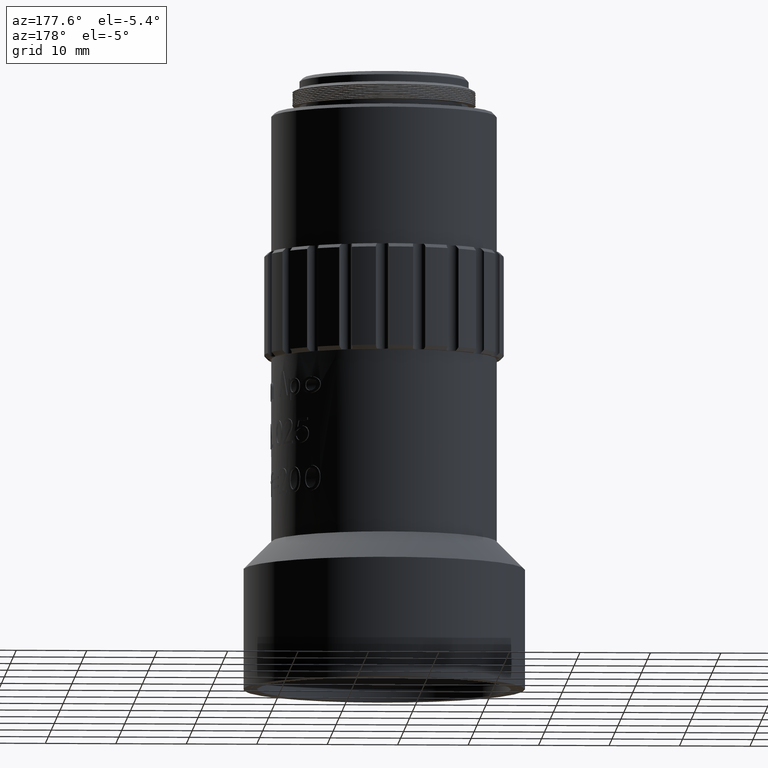
[diagram: clean part render]
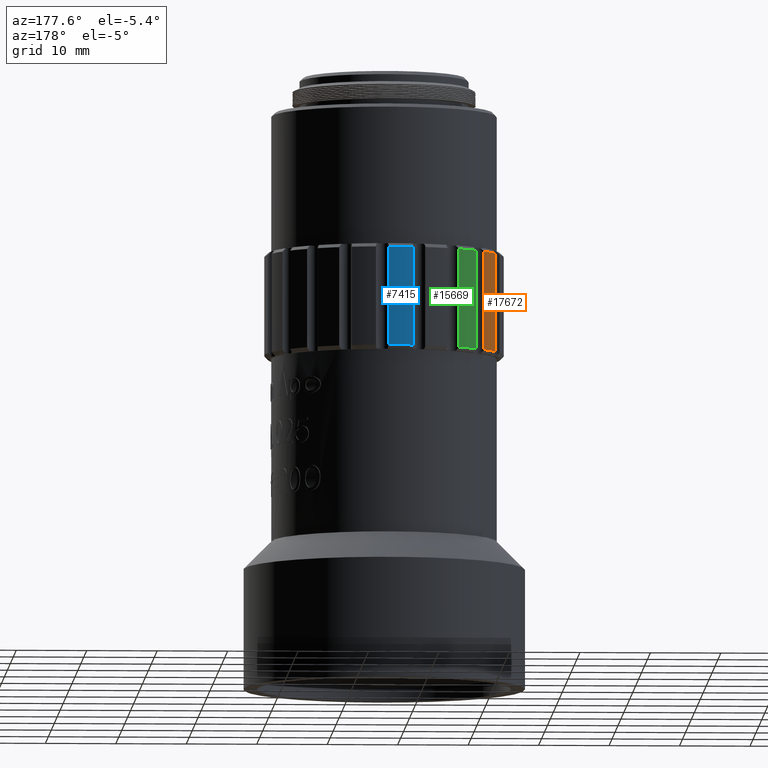
[diagram: same view with three faces highlighted in distinct colors, each labeled with its STEP entity id]
A machine part, auxiliary view with three faces highlighted in distinct colors.
Their STEP definitions:

[orange] entity #17672 — the highlighted cylindrical surface (partial cylindrical patch) has radius 17 mm, axis along (0, 0, 1).
#91 = DIRECTION ( 'NONE',  ( 1.000000000000000000, 0.000000000000000000, 0.000000000000000000 ) ) ;
#486 = CARTESIAN_POINT ( 'NONE',  ( -120.7547900707072159, -76.13137988462401040, -7.000000000000002665 ) ) ;
#658 = CARTESIAN_POINT ( 'NONE',  ( -120.7547900707072159, -76.13137988462401040, -6.500000000000005329 ) ) ;
#759 = EDGE_CURVE ( 'NONE', #14386, #5339, #18213, .T. ) ;
#991 = LINE ( 'NONE', #11822, #5338 ) ;
#1315 = CYLINDRICAL_SURFACE ( 'NONE', #18702, 16.99999999999998579 ) ;
#1560 = ORIENTED_EDGE ( 'NONE', *, *, #12081, .T. ) ;
#2044 = CARTESIAN_POINT ( 'NONE',  ( -119.0146970705976344, -73.13582394416638977, 7.499999999999978684 ) ) ;
#2358 = CARTESIAN_POINT ( 'NONE',  ( -105.2614081662234184, -83.12817323313825568, 7.499999999999978684 ) ) ;
#2819 = FACE_OUTER_BOUND ( 'NONE', #14940, .T. ) ;
#3497 = DIRECTION ( 'NONE',  ( -0.000000000000000000, -0.000000000000000000, 1.000000000000000000 ) ) ;
#3726 = VECTOR ( 'NONE', #3497, 1000.000000000000000 ) ;
#4547 = DIRECTION ( 'NONE',  ( -0.000000000000000000, -0.000000000000000000, 1.000000000000000000 ) ) ;
#4727 = EDGE_CURVE ( 'NONE', #18921, #5339, #991, .T. ) ;
#5338 = VECTOR ( 'NONE', #19256, 1000.000000000000000 ) ;
#5339 = VERTEX_POINT ( 'NONE', #2044 ) ;
#5868 = CARTESIAN_POINT ( 'NONE',  ( -119.0146970705976344, -73.13582394416638977, -6.500000000000005329 ) ) ;
#6128 = DIRECTION ( 'NONE',  ( 0.000000000000000000, 0.000000000000000000, 1.000000000000000000 ) ) ;
#6641 = CARTESIAN_POINT ( 'NONE',  ( -120.7547900707072159, -76.13137988462401040, 7.499999999999978684 ) ) ;
#6833 = AXIS2_PLACEMENT_3D ( 'NONE', #18295, #4547, #10663 ) ;
#7433 = CARTESIAN_POINT ( 'NONE',  ( -105.2614081662234184, -83.12817323313825568, -7.000000000000002665 ) ) ;
#8685 = DIRECTION ( 'NONE',  ( 0.000000000000000000, 0.000000000000000000, -1.000000000000000000 ) ) ;
#9641 = ORIENTED_EDGE ( 'NONE', *, *, #4727, .F. ) ;
#10191 = DIRECTION ( 'NONE',  ( 1.000000000000000000, 8.163404592832039882E-15, 0.000000000000000000 ) ) ;
#10663 = DIRECTION ( 'NONE',  ( 1.000000000000000000, 0.000000000000000000, 0.000000000000000000 ) ) ;
#11369 = ORIENTED_EDGE ( 'NONE', *, *, #759, .T. ) ;
#11822 = CARTESIAN_POINT ( 'NONE',  ( -119.0146970705976344, -73.13582394416638977, -7.000000000000002665 ) ) ;
#12081 = EDGE_CURVE ( 'NONE', #13772, #14386, #16671, .T. ) ;
#13243 = CIRCLE ( 'NONE', #6833, 16.99999999999998579 ) ;
#13772 = VERTEX_POINT ( 'NONE', #658 ) ;
#14353 = ORIENTED_EDGE ( 'NONE', *, *, #16370, .T. ) ;
#14386 = VERTEX_POINT ( 'NONE', #6641 ) ;
#14940 = EDGE_LOOP ( 'NONE', ( #9641, #14353, #1560, #11369 ) ) ;
#16370 = EDGE_CURVE ( 'NONE', #18921, #13772, #13243, .T. ) ;
#16671 = LINE ( 'NONE', #486, #3726 ) ;
#17672 = ADVANCED_FACE ( 'NONE', ( #2819 ), #1315, .T. ) ;
#18213 = CIRCLE ( 'NONE', #19815, 16.99999999999998579 ) ;
#18295 = CARTESIAN_POINT ( 'NONE',  ( -105.2614081662234184, -83.12817323313825568, -6.500000000000005329 ) ) ;
#18702 = AXIS2_PLACEMENT_3D ( 'NONE', #7433, #6128, #91 ) ;
#18921 = VERTEX_POINT ( 'NONE', #5868 ) ;
#19256 = DIRECTION ( 'NONE',  ( -0.000000000000000000, -0.000000000000000000, 1.000000000000000000 ) ) ;
#19815 = AXIS2_PLACEMENT_3D ( 'NONE', #2358, #8685, #10191 ) ;

[blue] entity #7415 — the highlighted cylindrical surface (partial cylindrical patch) has radius 17 mm, axis along (0, 0, 1).
#68 = VERTEX_POINT ( 'NONE', #19874 ) ;
#444 = CARTESIAN_POINT ( 'NONE',  ( -108.7076648327364410, -66.48115202847480987, -7.000000000000002665 ) ) ;
#879 = VERTEX_POINT ( 'NONE', #18308 ) ;
#1330 = CARTESIAN_POINT ( 'NONE',  ( -105.2614081662234184, -83.12817323313825568, -6.500000000000005329 ) ) ;
#2300 = EDGE_CURVE ( 'NONE', #68, #10690, #14194, .T. ) ;
#2843 = AXIS2_PLACEMENT_3D ( 'NONE', #14323, #4992, #17031 ) ;
#2884 = EDGE_CURVE ( 'NONE', #10690, #16090, #13143, .T. ) ;
#3140 = EDGE_CURVE ( 'NONE', #879, #16090, #4880, .T. ) ;
#4319 = ORIENTED_EDGE ( 'NONE', *, *, #16264, .T. ) ;
#4485 = AXIS2_PLACEMENT_3D ( 'NONE', #10878, #15194, #13780 ) ;
#4880 = LINE ( 'NONE', #13704, #19729 ) ;
#4992 = DIRECTION ( 'NONE',  ( 0.000000000000000000, 0.000000000000000000, 1.000000000000000000 ) ) ;
#5087 = CYLINDRICAL_SURFACE ( 'NONE', #2843, 16.99999999999998579 ) ;
#6492 = FACE_OUTER_BOUND ( 'NONE', #7118, .T. ) ;
#6708 = CARTESIAN_POINT ( 'NONE',  ( -108.7076648327364410, -66.48115202847480987, 7.499999999999978684 ) ) ;
#7118 = EDGE_LOOP ( 'NONE', ( #15037, #4319, #11218, #10103 ) ) ;
#7415 = ADVANCED_FACE ( 'NONE', ( #6492 ), #5087, .T. ) ;
#8076 = CARTESIAN_POINT ( 'NONE',  ( -105.2614081662235748, -66.12817323313826989, 7.499999999999978684 ) ) ;
#8114 = CIRCLE ( 'NONE', #14850, 16.99999999999998579 ) ;
#10103 = ORIENTED_EDGE ( 'NONE', *, *, #2884, .T. ) ;
#10690 = VERTEX_POINT ( 'NONE', #6708 ) ;
#10878 = CARTESIAN_POINT ( 'NONE',  ( -105.2614081662234184, -83.12817323313825568, 7.499999999999978684 ) ) ;
#11218 = ORIENTED_EDGE ( 'NONE', *, *, #2300, .T. ) ;
#11284 = DIRECTION ( 'NONE',  ( -0.000000000000000000, -0.000000000000000000, 1.000000000000000000 ) ) ;
#12302 = DIRECTION ( 'NONE',  ( -0.000000000000000000, -0.000000000000000000, 1.000000000000000000 ) ) ;
#13143 = CIRCLE ( 'NONE', #4485, 16.99999999999998579 ) ;
#13704 = CARTESIAN_POINT ( 'NONE',  ( -105.2614081662235748, -66.12817323313825568, -7.000000000000002665 ) ) ;
#13780 = DIRECTION ( 'NONE',  ( 1.000000000000000000, 5.714383214982427917E-15, 0.000000000000000000 ) ) ;
#14194 = LINE ( 'NONE', #444, #19552 ) ;
#14323 = CARTESIAN_POINT ( 'NONE',  ( -105.2614081662234184, -83.12817323313825568, -7.000000000000002665 ) ) ;
#14850 = AXIS2_PLACEMENT_3D ( 'NONE', #1330, #16592, #19598 ) ;
#15037 = ORIENTED_EDGE ( 'NONE', *, *, #3140, .F. ) ;
#15194 = DIRECTION ( 'NONE',  ( 0.000000000000000000, 0.000000000000000000, -1.000000000000000000 ) ) ;
#16090 = VERTEX_POINT ( 'NONE', #8076 ) ;
#16264 = EDGE_CURVE ( 'NONE', #879, #68, #8114, .T. ) ;
#16592 = DIRECTION ( 'NONE',  ( -0.000000000000000000, -0.000000000000000000, 1.000000000000000000 ) ) ;
#17031 = DIRECTION ( 'NONE',  ( 1.000000000000000000, 0.000000000000000000, 0.000000000000000000 ) ) ;
#18308 = CARTESIAN_POINT ( 'NONE',  ( -105.2614081662235748, -66.12817323313825568, -6.500000000000005329 ) ) ;
#19552 = VECTOR ( 'NONE', #11284, 1000.000000000000000 ) ;
#19598 = DIRECTION ( 'NONE',  ( 1.000000000000000000, 0.000000000000000000, 0.000000000000000000 ) ) ;
#19729 = VECTOR ( 'NONE', #12302, 1000.000000000000000 ) ;
#19874 = CARTESIAN_POINT ( 'NONE',  ( -108.7076648327364410, -66.48115202847480987, -6.500000000000005329 ) ) ;

[green] entity #15669 — the highlighted cylindrical surface (partial cylindrical patch) has radius 17 mm, axis along (0, 0, 1).
#515 = VECTOR ( 'NONE', #1156, 1000.000000000000000 ) ;
#1156 = DIRECTION ( 'NONE',  ( -0.000000000000000000, -0.000000000000000000, 1.000000000000000000 ) ) ;
#1210 = CARTESIAN_POINT ( 'NONE',  ( -105.2614081662234184, -83.12817323313825568, 7.499999999999978684 ) ) ;
#1711 = CYLINDRICAL_SURFACE ( 'NONE', #7770, 16.99999999999998579 ) ;
#2530 = CARTESIAN_POINT ( 'NONE',  ( -117.8343619351116587, -71.68610901703640081, -7.000000000000002665 ) ) ;
#2657 = CARTESIAN_POINT ( 'NONE',  ( -117.8343619351116587, -71.68610901703640081, -6.500000000000005329 ) ) ;
#3668 = VECTOR ( 'NONE', #14878, 1000.000000000000000 ) ;
#4151 = CIRCLE ( 'NONE', #11192, 16.99999999999998579 ) ;
#4401 = EDGE_CURVE ( 'NONE', #14007, #15344, #8972, .T. ) ;
#5019 = VERTEX_POINT ( 'NONE', #2657 ) ;
#5393 = CARTESIAN_POINT ( 'NONE',  ( -105.2614081662234184, -83.12817323313825568, -6.500000000000005329 ) ) ;
#5743 = ORIENTED_EDGE ( 'NONE', *, *, #6636, .T. ) ;
#5924 = DIRECTION ( 'NONE',  ( 1.000000000000000000, -1.795949010423048774E-14, 0.000000000000000000 ) ) ;
#6051 = ORIENTED_EDGE ( 'NONE', *, *, #4401, .F. ) ;
#6371 = VERTEX_POINT ( 'NONE', #11155 ) ;
#6636 = EDGE_CURVE ( 'NONE', #6371, #15344, #4151, .T. ) ;
#7770 = AXIS2_PLACEMENT_3D ( 'NONE', #12457, #15170, #18575 ) ;
#7866 = CARTESIAN_POINT ( 'NONE',  ( -115.2537574551956112, -69.37488432876426714, 7.499999999999978684 ) ) ;
#8972 = LINE ( 'NONE', #15191, #515 ) ;
#9242 = FACE_OUTER_BOUND ( 'NONE', #10464, .T. ) ;
#9396 = CIRCLE ( 'NONE', #16439, 16.99999999999998579 ) ;
#9737 = ORIENTED_EDGE ( 'NONE', *, *, #14251, .T. ) ;
#10163 = LINE ( 'NONE', #2530, #3668 ) ;
#10273 = ORIENTED_EDGE ( 'NONE', *, *, #15035, .T. ) ;
#10375 = CARTESIAN_POINT ( 'NONE',  ( -115.2537574551956112, -69.37488432876426714, -6.500000000000005329 ) ) ;
#10464 = EDGE_LOOP ( 'NONE', ( #6051, #10273, #9737, #5743 ) ) ;
#11155 = CARTESIAN_POINT ( 'NONE',  ( -117.8343619351116587, -71.68610901703640081, 7.499999999999978684 ) ) ;
#11192 = AXIS2_PLACEMENT_3D ( 'NONE', #1210, #19573, #5924 ) ;
#12457 = CARTESIAN_POINT ( 'NONE',  ( -105.2614081662234184, -83.12817323313825568, -7.000000000000002665 ) ) ;
#14007 = VERTEX_POINT ( 'NONE', #10375 ) ;
#14251 = EDGE_CURVE ( 'NONE', #5019, #6371, #10163, .T. ) ;
#14878 = DIRECTION ( 'NONE',  ( -0.000000000000000000, -0.000000000000000000, 1.000000000000000000 ) ) ;
#15035 = EDGE_CURVE ( 'NONE', #14007, #5019, #9396, .T. ) ;
#15170 = DIRECTION ( 'NONE',  ( 0.000000000000000000, 0.000000000000000000, 1.000000000000000000 ) ) ;
#15191 = CARTESIAN_POINT ( 'NONE',  ( -115.2537574551956112, -69.37488432876426714, -7.000000000000002665 ) ) ;
#15344 = VERTEX_POINT ( 'NONE', #7866 ) ;
#15669 = ADVANCED_FACE ( 'NONE', ( #9242 ), #1711, .T. ) ;
#16439 = AXIS2_PLACEMENT_3D ( 'NONE', #5393, #17741, #19231 ) ;
#17741 = DIRECTION ( 'NONE',  ( -0.000000000000000000, -0.000000000000000000, 1.000000000000000000 ) ) ;
#18575 = DIRECTION ( 'NONE',  ( 1.000000000000000000, 0.000000000000000000, 0.000000000000000000 ) ) ;
#19231 = DIRECTION ( 'NONE',  ( 1.000000000000000000, 0.000000000000000000, 0.000000000000000000 ) ) ;
#19573 = DIRECTION ( 'NONE',  ( 0.000000000000000000, 0.000000000000000000, -1.000000000000000000 ) ) ;